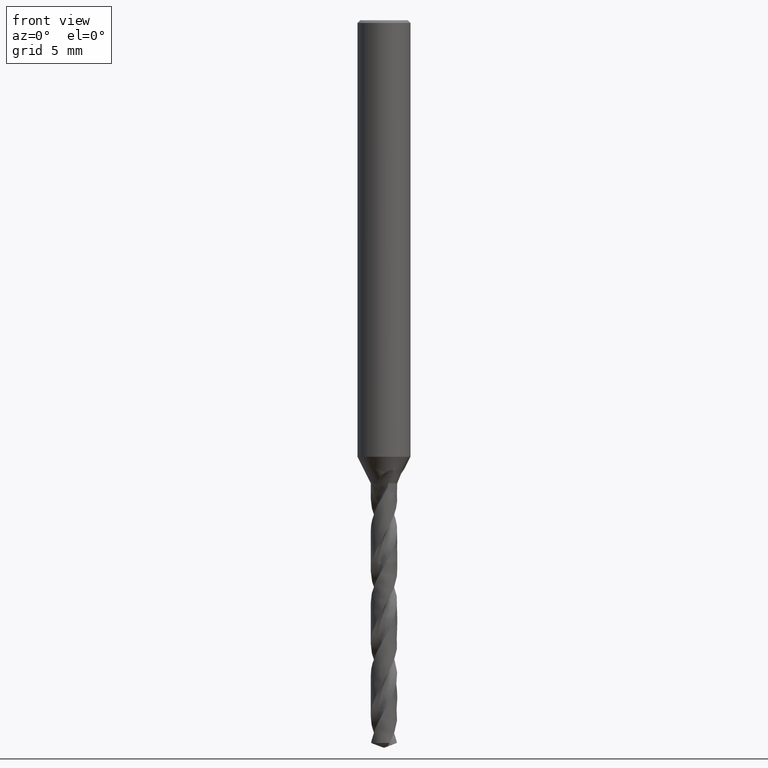
[diagram: clean part render]
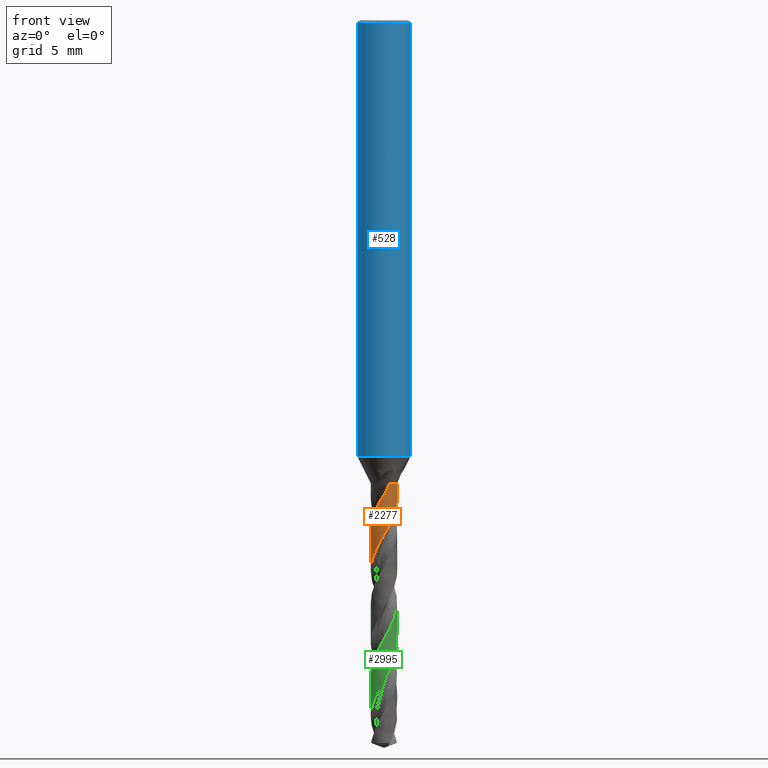
[diagram: same view with three faces highlighted in distinct colors, each labeled with its STEP entity id]
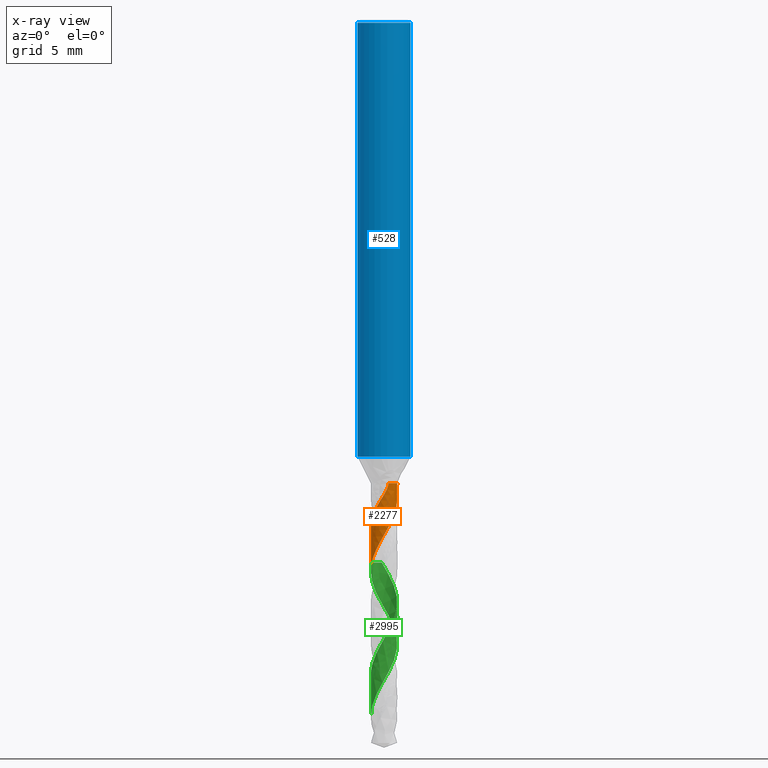
[diagram: x-ray of the same camera — body ghosted, the three highlighted faces saturated]
A machine part, front view with three faces highlighted in distinct colors.
The next image is the same camera in x-ray (body ghosted, the three faces saturated) — at least one of them is partly hidden behind the body in this view.
Their STEP definitions:

[orange] entity #2277 — the highlighted face is a freeform B-spline surface patch.
#317 = VERTEX_POINT('', #318);
#318 = CARTESIAN_POINT('', (0.331958743086903, -0.943293905889442, -35.));
#376 = EDGE_CURVE('', #377, #317, #379, .T.);
#377 = VERTEX_POINT('', #378);
#378 = CARTESIAN_POINT('', (0.591817481824011, 0.806071999394278, -35.));
#379 = CIRCLE('', #380, 1.);
#380 = AXIS2_PLACEMENT_3D('', #381, #382, #383);
#381 = CARTESIAN_POINT('', (1.31228980982913E-31, 2.14313189850787E-15, -35.));
#382 = DIRECTION('', (3.74939945665464E-33, 6.12323399573677E-17, -1.));
#383 = DIRECTION('', (-1., 6.12323399573677E-17, 0.));
#858 = VERTEX_POINT('', #859);
#859 = CARTESIAN_POINT('', (-1., 2.42267420681008E-15, -38.5652723462282));
#866 = EDGE_CURVE('', #867, #858, #869, .T.);
#867 = VERTEX_POINT('', #868);
#868 = CARTESIAN_POINT('', (-0.667705279136492, -0.744425725115176, -37.0936840028538));
#869 = B_SPLINE_CURVE_WITH_KNOTS('', 3, (#870, #871, #872, #873, #874, #875, #876, #877, #878, #879, #880, #881, #882, #883, #884, #885, #886, #887, #888, #889, #890, #891, #892, #893, #894, #895, #896, #897, #898, #899, #900), .UNSPECIFIED., .F., .U., (4, 3, 3, 3, 3, 3, 3, 3, 3, 3, 4), (0., 0.087580638137698, 0.284562982988752, 0.481490965644357, 0.67835255485315, 0.809625128761185, 0.897161192859609, 1.093937016555, 1.2906585650565, 1.48731391158484, 1.69419780096293), .UNSPECIFIED.);
#870 = CARTESIAN_POINT('', (-0.66770527913649, -0.744425725115178, -37.0936840028538));
#871 = CARTESIAN_POINT('', (-0.678097659484372, -0.735104382519177, -37.1193233112229));
#872 = CARTESIAN_POINT('', (-0.688332712692833, -0.725531068232871, -37.1449365169101));
#873 = CARTESIAN_POINT('', (-0.698384838463862, -0.715722444390147, -37.1705296565481));
#874 = CARTESIAN_POINT('', (-0.720993617609792, -0.693661338586556, -37.2280925695982));
#875 = CARTESIAN_POINT('', (-0.742696758048704, -0.670391631442098, -37.2855689448738));
#876 = CARTESIAN_POINT('', (-0.763361915090433, -0.645971041602844, -37.342909369697));
#877 = CARTESIAN_POINT('', (-0.784021369066199, -0.621557191234983, -37.4002339699985));
#878 = CARTESIAN_POINT('', (-0.803649294125848, -0.595983186919778, -37.4574581380113));
#879 = CARTESIAN_POINT('', (-0.822082645357237, -0.569368179829576, -37.5145616570627));
#880 = CARTESIAN_POINT('', (-0.840509781861252, -0.542762145877848, -37.5716459239012));
#881 = CARTESIAN_POINT('', (-0.857754203570938, -0.515098557653066, -37.6286417706444));
#882 = CARTESIAN_POINT('', (-0.873660283421887, -0.486536441771001, -37.6855386605681));
#883 = CARTESIAN_POINT('', (-0.884266882968364, -0.46749045883869, -37.7234790288119));
#884 = CARTESIAN_POINT('', (-0.894283741223398, -0.448035912976097, -37.7613859934346));
#885 = CARTESIAN_POINT('', (-0.903662127725927, -0.428246142906011, -37.7992691272735));
#886 = CARTESIAN_POINT('', (-0.909915886737312, -0.415049794805442, -37.8245306143705));
#887 = CARTESIAN_POINT('', (-0.915886410607096, -0.401703288192095, -37.8497858040511));
#888 = CARTESIAN_POINT('', (-0.921558545729247, -0.388239419422338, -37.8750434158983));
#889 = CARTESIAN_POINT('', (-0.934309165399761, -0.357973449680807, -37.9318210129607));
#890 = CARTESIAN_POINT('', (-0.945554326599717, -0.32711275382901, -37.9886425486653));
#891 = CARTESIAN_POINT('', (-0.955255512722856, -0.295781854434241, -38.0454454049797));
#892 = CARTESIAN_POINT('', (-0.964954023040868, -0.264459596805555, -38.1022325937899));
#893 = CARTESIAN_POINT('', (-0.973116816522373, -0.232636579206561, -38.1590287600673));
#894 = CARTESIAN_POINT('', (-0.979694012129913, -0.200498485272589, -38.2158073929722));
#895 = CARTESIAN_POINT('', (-0.986268994338207, -0.168371206652183, -38.2725669183743));
#896 = CARTESIAN_POINT('', (-0.991262949830315, -0.135914502940906, -38.3293459925402));
#897 = CARTESIAN_POINT('', (-0.994649942995187, -0.103302908474704, -38.386109082045));
#898 = CARTESIAN_POINT('', (-0.99821310225638, -0.0689951023504668, -38.4458245636589));
#899 = CARTESIAN_POINT('', (-1., -0.0344925181227468, -38.5055569662754));
#900 = CARTESIAN_POINT('', (-1., 2.81420090085561E-15, -38.5652723462282));
#903 = VERTEX_POINT('', #904);
#904 = CARTESIAN_POINT('', (-0.270919259129546, -0.962602075123829, -36.2945627804179));
#915 = EDGE_CURVE('', #903, #317, #916, .T.);
#916 = B_SPLINE_CURVE_WITH_KNOTS('', 3, (#917, #918, #919, #920, #921, #922, #923, #924, #925, #926, #927, #928, #929, #930, #931, #932, #933, #934, #935, #936, #937, #938, #939, #940, #941, #942, #943, #944, #945, #946, #947, #948, #949, #950, #951, #952, #953, #954, #955, #956, #957, #958, #959), .UNSPECIFIED., .F., .U., (4, 3, 3, 3, 3, 3, 3, 3, 3, 3, 3, 3, 3, 3, 4), (0., 0.131112997442626, 0.262057827260335, 0.392835903925117, 0.480081468572458, 0.506004415062296, 0.637024939736677, 0.767840597542089, 0.898481767069505, 1.02899985926785, 1.11617536079775, 1.20336218454592, 1.29059378630664, 1.37792635467049, 1.452150338563), .UNSPECIFIED.);
#917 = CARTESIAN_POINT('', (-0.270919259129546, -0.962602075123828, -36.2945627804179));
#918 = CARTESIAN_POINT('', (-0.247424707032954, -0.969214492458136, -36.2583088063409));
#919 = CARTESIAN_POINT('', (-0.223459358542497, -0.975025484034326, -36.2222024999147));
#920 = CARTESIAN_POINT('', (-0.199280792004015, -0.97994242991017, -36.1861291130346));
#921 = CARTESIAN_POINT('', (-0.175133237281203, -0.984853069232689, -36.1501019944568));
#922 = CARTESIAN_POINT('', (-0.150768015444397, -0.988873021553837, -36.1140878290414));
#923 = CARTESIAN_POINT('', (-0.126452597808502, -0.991972651088465, -36.0779723917243));
#924 = CARTESIAN_POINT('', (-0.102168144912194, -0.995068333365317, -36.0419029460133));
#925 = CARTESIAN_POINT('', (-0.0779196699334643, -0.997248068365322, -36.0057182679496));
#926 = CARTESIAN_POINT('', (-0.0539716147974466, -0.998542470201519, -35.9693158230562));
#927 = CARTESIAN_POINT('', (-0.037995224519869, -0.999406000404437, -35.9450307751318));
#928 = CARTESIAN_POINT('', (-0.0221488423684186, -0.999877015436903, -35.9206422602196));
#929 = CARTESIAN_POINT('', (-0.00650893016357039, -0.999978816689696, -35.8961241635126));
#930 = CARTESIAN_POINT('', (-0.00186190187243771, -1.00000906451306, -35.8888391936516));
#931 = CARTESIAN_POINT('', (0.00276712145247744, -1.00000679375802, -35.8815424967306));
#932 = CARTESIAN_POINT('', (0.0073761742243168, -0.999972795656866, -35.8742334578456));
#933 = CARTESIAN_POINT('', (0.0306713853861743, -0.999800961446107, -35.8372918968257));
#934 = CARTESIAN_POINT('', (0.0534645931661069, -0.998814185675477, -35.8000216861965));
#935 = CARTESIAN_POINT('', (0.0754976889087504, -0.99714597676039, -35.7623502767236));
#936 = CARTESIAN_POINT('', (0.0974963331686991, -0.995480376297209, -35.72473777118));
#937 = CARTESIAN_POINT('', (0.118751929840653, -0.99313478952755, -35.6867019048498));
#938 = CARTESIAN_POINT('', (0.139016155171699, -0.990290113351271, -35.6481962671244));
#939 = CARTESIAN_POINT('', (0.15925335109478, -0.98744923154224, -35.6097419900888));
#940 = CARTESIAN_POINT('', (0.178516209727836, -0.984108679482716, -35.5707879318641));
#941 = CARTESIAN_POINT('', (0.196540541612952, -0.980495698869955, -35.531311154364));
#942 = CARTESIAN_POINT('', (0.214547892735919, -0.976886122054064, -35.4918715680215));
#943 = CARTESIAN_POINT('', (0.231341420234763, -0.973000291722233, -35.4518706874477));
#944 = CARTESIAN_POINT('', (0.246615961784082, -0.969113289246056, -35.4113200487064));
#945 = CARTESIAN_POINT('', (0.256818116885902, -0.966517086799319, -35.3842355103861));
#946 = CARTESIAN_POINT('', (0.266349623251003, -0.96391944635867, -35.3568860436432));
#947 = CARTESIAN_POINT('', (0.275099082181929, -0.961415880346614, -35.3292893848323));
#948 = CARTESIAN_POINT('', (0.283849677478944, -0.958911989175307, -35.3016891418103));
#949 = CARTESIAN_POINT('', (0.291826537447043, -0.956499855407902, -35.2738184405929));
#950 = CARTESIAN_POINT('', (0.298884495758693, -0.954289294813196, -35.2457130238508));
#951 = CARTESIAN_POINT('', (0.305946078945436, -0.952077598903477, -35.2175931725341));
#952 = CARTESIAN_POINT('', (0.312097370687558, -0.950065001686242, -35.1892049892437));
#953 = CARTESIAN_POINT('', (0.317140410689729, -0.948378595239025, -35.160618150055));
#954 = CARTESIAN_POINT('', (0.322189287780848, -0.94669023685321, -35.1319982229029));
#955 = CARTESIAN_POINT('', (0.326138830164317, -0.945325765579732, -35.1031280361719));
#956 = CARTESIAN_POINT('', (0.328697467213187, -0.944435267791092, -35.0741435172996));
#957 = CARTESIAN_POINT('', (0.330872053838315, -0.943678433373433, -35.0495095634127));
#958 = CARTESIAN_POINT('', (0.332046366576497, -0.943263069918501, -35.0247411535846));
#959 = CARTESIAN_POINT('', (0.331958743086903, -0.943293905889442, -35.));
#1272 = EDGE_CURVE('', #903, #867, #1273, .T.);
#1273 = B_SPLINE_CURVE_WITH_KNOTS('', 3, (#1274, #1275, #1276, #1277, #1278, #1279, #1280, #1281, #1282, #1283, #1284, #1285, #1286, #1287, #1288, #1289, #1290, #1291, #1292, #1293, #1294, #1295, #1296, #1297, #1298, #1299, #1300, #1301), .UNSPECIFIED., .F., .U., (4, 3, 3, 3, 3, 3, 3, 3, 3, 4), (0., 0.131545010559273, 0.263122094423806, 0.350791481876697, 0.438432320446734, 0.526042093561426, 0.584444479798226, 0.672039810538465, 0.759615687661557, 0.920942907310289), .UNSPECIFIED.);
#1274 = CARTESIAN_POINT('', (-0.270919259129546, -0.962602075123829, -36.2945627804179));
#1275 = CARTESIAN_POINT('', (-0.294491225020907, -0.955967870086724, -36.3309362101754));
#1276 = CARTESIAN_POINT('', (-0.317396924715115, -0.948585963660327, -36.3676186721934));
#1277 = CARTESIAN_POINT('', (-0.339578180540052, -0.940577832665167, -36.4045853919934));
#1278 = CARTESIAN_POINT('', (-0.361764844598916, -0.932567749127461, -36.4415611250193));
#1279 = CARTESIAN_POINT('', (-0.383242937304829, -0.923924352358713, -36.4788376845253));
#1280 = CARTESIAN_POINT('', (-0.403929292725018, -0.914790208998032, -36.5164176852922));
#1281 = CARTESIAN_POINT('', (-0.417712544755349, -0.908704158678188, -36.541457118839));
#1282 = CARTESIAN_POINT('', (-0.431146855764007, -0.902399297150551, -36.5666394036593));
#1283 = CARTESIAN_POINT('', (-0.444194956034298, -0.895930154104812, -36.5919749230927));
#1284 = CARTESIAN_POINT('', (-0.457238807287949, -0.889463117687308, -36.6173021922031));
#1285 = CARTESIAN_POINT('', (-0.469899956339367, -0.8828319405219, -36.6427874741962));
#1286 = CARTESIAN_POINT('', (-0.482233325493585, -0.876042818464827, -36.6683849546022));
#1287 = CARTESIAN_POINT('', (-0.494562322921848, -0.869256102901935, -36.6939733616426));
#1288 = CARTESIAN_POINT('', (-0.506566359325747, -0.862310995033445, -36.7196779946283));
#1289 = CARTESIAN_POINT('', (-0.518345657534417, -0.85517119883405, -36.7454287558699));
#1290 = CARTESIAN_POINT('', (-0.526197967831815, -0.850411671209852, -36.762594716361));
#1291 = CARTESIAN_POINT('', (-0.533956915282278, -0.845561084351134, -36.7797785906115));
#1292 = CARTESIAN_POINT('', (-0.541639873351949, -0.840610639710967, -36.7969671720817));
#1293 = CARTESIAN_POINT('', (-0.55316322533362, -0.833185671939814, -36.8227476166124));
#1294 = CARTESIAN_POINT('', (-0.564505502916703, -0.825542573709265, -36.8485476894459));
#1295 = CARTESIAN_POINT('', (-0.575687087733734, -0.817670090572383, -36.8743458536778));
#1296 = CARTESIAN_POINT('', (-0.586866189287463, -0.809799355796648, -36.9001382885221));
#1297 = CARTESIAN_POINT('', (-0.597886200621691, -0.801698747406031, -36.9259311590473));
#1298 = CARTESIAN_POINT('', (-0.608786692478001, -0.793333954310348, -36.9516873230942));
#1299 = CARTESIAN_POINT('', (-0.628866948614178, -0.777924815887826, -36.9991338400005));
#1300 = CARTESIAN_POINT('', (-0.648562077366028, -0.76159603029201, -37.0464553182854));
#1301 = CARTESIAN_POINT('', (-0.667705279136492, -0.744425725115176, -37.0936840028538));
#1637 = EDGE_CURVE('', #1638, #377, #1640, .T.);
#1638 = VERTEX_POINT('', #1639);
#1639 = CARTESIAN_POINT('', (0.814095519912486, 0.580730991474041, -35.3306141428726));
#1640 = B_SPLINE_CURVE_WITH_KNOTS('', 3, (#1641, #1642, #1643, #1644, #1645, #1646, #1647, #1648, #1649, #1650, #1651, #1652, #1653), .UNSPECIFIED., .F., .U., (4, 3, 3, 3, 4), (0., 0.132920508495596, 0.265944197265653, 0.399045964347828, 0.459074811286351), .UNSPECIFIED.);
#1641 = CARTESIAN_POINT('', (0.814095519912486, 0.580730991474041, -35.3306141428726));
#1642 = CARTESIAN_POINT('', (0.797870761742265, 0.603475606677913, -35.2962261299536));
#1643 = CARTESIAN_POINT('', (0.780210864995625, 0.626213312950663, -35.2624697975323));
#1644 = CARTESIAN_POINT('', (0.761054150340617, 0.648688353717965, -35.2294396816212));
#1645 = CARTESIAN_POINT('', (0.741882565180686, 0.671180840859052, -35.1963839259012));
#1646 = CARTESIAN_POINT('', (0.721184669493866, 0.693441699792829, -35.1640058630792));
#1647 = CARTESIAN_POINT('', (0.698924759913472, 0.71519520410857, -35.1324238093617));
#1648 = CARTESIAN_POINT('', (0.676651784869445, 0.736961476653152, -35.1008232185441));
#1649 = CARTESIAN_POINT('', (0.652775508219572, 0.758257723256828, -35.0699666952295));
#1650 = CARTESIAN_POINT('', (0.627293240355083, 0.778783147355426, -35.0400031445741));
#1651 = CARTESIAN_POINT('', (0.615800747123649, 0.788040105911073, -35.0264895944879));
#1652 = CARTESIAN_POINT('', (0.603974925804552, 0.797146012773496, -35.0131494500651));
#1653 = CARTESIAN_POINT('', (0.591817481824011, 0.806071999394278, -35.));
#1897 = VERTEX_POINT('', #1898);
#1898 = CARTESIAN_POINT('', (-0.931375569243423, -0.364059815162961, -41.));
#1905 = EDGE_CURVE('', #1638, #1897, #1906, .T.);
#1906 = B_SPLINE_CURVE_WITH_KNOTS('', 3, (#1907, #1908, #1909, #1910, #1911, #1912, #1913, #1914, #1915, #1916, #1917, #1918, #1919, #1920, #1921, #1922, #1923, #1924, #1925, #1926, #1927, #1928, #1929, #1930, #1931, #1932, #1933, #1934, #1935, #1936, #1937, #1938, #1939, #1940, #1941, #1942, #1943, #1944, #1945, #1946, #1947, #1948, #1949, #1950, #1951, #1952, #1953, #1954, #1955, #1956, #1957, #1958, #1959, #1960, #1961, #1962, #1963, #1964, #1965, #1966, #1967, #1968, #1969, #1970, #1971, #1972, #1973, #1974, #1975, #1976, #1977, #1978, #1979, #1980, #1981, #1982, #1983, #1984, #1985, #1986, #1987, #1988, #1989, #1990, #1991, #1992, #1993, #1994, #1995, #1996, #1997, #1998, #1999, #2000, #2001, #2002, #2003, #2004, #2005, #2006, #2007, #2008, #2009, #2010, #2011, #2012, #2013, #2014, #2015, #2016, #2017, #2018, #2019, #2020, #2021, #2022, #2023, #2024, #2025, #2026, #2027, #2028, #2029, #2030), .UNSPECIFIED., .F., .U., (4, 3, 3, 3, 3, 3, 3, 3, 3, 3, 3, 3, 3, 3, 3, 3, 3, 3, 3, 3, 3, 3, 3, 3, 3, 3, 3, 3, 3, 3, 3, 3, 3, 3, 3, 3, 3, 3, 3, 3, 3, 4), (0., 0.130713721621778, 0.261446195597419, 0.392208586974836, 0.523005884833641, 0.65384900582493, 0.784740314683078, 0.915683874806735, 1.04668553806505, 1.07263467825158, 1.20426791351592, 1.33589112887555, 1.46753823703605, 1.52596971363927, 1.61363903296967, 1.70127484601613, 1.7596883178821, 1.8473146074909, 1.93491756876288, 2.02252142282714, 2.15393623335191, 2.35101896870534, 2.54806132199728, 2.74504767579916, 2.83261028190415, 2.96393846930068, 3.05149411321987, 3.24837750267737, 3.44520854752848, 3.74011203216584, 4.03481673744868, 4.16598088737569, 4.20488566519468, 4.50146691930273, 4.79781584453753, 5.09394196108365, 5.38985605371845, 5.6855663951253, 5.98107814618691, 6.27639454786366, 6.5715166444144, 6.61001892849816), .UNSPECIFIED.);
#1907 = CARTESIAN_POINT('', (0.814095519912486, 0.580730991474041, -35.3306141428726));
#1908 = CARTESIAN_POINT('', (0.830050909692786, 0.55836398931762, -35.3644312354996));
#1909 = CARTESIAN_POINT('', (0.844963571798965, 0.535507091226506, -35.3984351686919));
#1910 = CARTESIAN_POINT('', (0.85881684222291, 0.512282765193481, -35.432599047001));
#1911 = CARTESIAN_POINT('', (0.872672100054343, 0.48905510736962, -35.4667678265027));
#1912 = CARTESIAN_POINT('', (0.885475885902655, 0.465446305533014, -35.501121488219));
#1913 = CARTESIAN_POINT('', (0.897223863778772, 0.441575971114708, -35.5356351072813));
#1914 = CARTESIAN_POINT('', (0.908974530114484, 0.417700174102727, -35.570156624594));
#1915 = CARTESIAN_POINT('', (0.919677283511454, 0.393545806288983, -35.6048585689723));
#1916 = CARTESIAN_POINT('', (0.929338179414571, 0.36922966874618, -35.6397191419052));
#1917 = CARTESIAN_POINT('', (0.939001654254027, 0.344907040110688, -35.6745890207244));
#1918 = CARTESIAN_POINT('', (0.947627694184705, 0.320410639918444, -35.7096404285529));
#1919 = CARTESIAN_POINT('', (0.955235202489859, 0.295847440286646, -35.7448491845634));
#1920 = CARTESIAN_POINT('', (0.962845375986624, 0.271275635257264, -35.7800702755038));
#1921 = CARTESIAN_POINT('', (0.969440759481059, 0.246622217911988, -35.8154678766544));
#1922 = CARTESIAN_POINT('', (0.975047653210877, 0.221995662047626, -35.8510250008217));
#1923 = CARTESIAN_POINT('', (0.980656611888752, 0.197360036534158, -35.8865952202281));
#1924 = CARTESIAN_POINT('', (0.985279582111323, 0.172738302947204, -35.9223436618752));
#1925 = CARTESIAN_POINT('', (0.988953590159977, 0.14822549210475, -35.9582496326875));
#1926 = CARTESIAN_POINT('', (0.992629064857347, 0.12370289585027, -35.9941699370138));
#1927 = CARTESIAN_POINT('', (0.995356394160782, 0.0992783758147931, -36.0302664017968));
#1928 = CARTESIAN_POINT('', (0.99718009372992, 0.0750457238542172, -36.0665236466321));
#1929 = CARTESIAN_POINT('', (0.999004602522983, 0.0508023192225009, -36.1027969797697));
#1930 = CARTESIAN_POINT('', (0.999925967739419, 0.0267366966556748, -36.1392457776329));
#1931 = CARTESIAN_POINT('', (0.99999570927832, 0.00292940693730242, -36.1758522564278));
#1932 = CARTESIAN_POINT('', (1.00000952385842, -0.00178640111427339, -36.1831033601647));
#1933 = CARTESIAN_POINT('', (0.999989949423278, -0.00649230241821115, -36.1903610559425));
#1934 = CARTESIAN_POINT('', (0.999937416416876, -0.0111876382468717, -36.1976252560749));
#1935 = CARTESIAN_POINT('', (0.999670930146379, -0.035005855009985, -36.2344746529398));
#1936 = CARTESIAN_POINT('', (0.998555624582649, -0.0585561978037882, -36.2715014145491));
#1937 = CARTESIAN_POINT('', (0.996651829712581, -0.0817626463035851, -36.3086913705471));
#1938 = CARTESIAN_POINT('', (0.99474817975913, -0.104967328331544, -36.3458784956506));
#1939 = CARTESIAN_POINT('', (0.992055623419409, -0.127837220572577, -36.3832436259161));
#1940 = CARTESIAN_POINT('', (0.988638864537124, -0.150310330738594, -36.4207702631599));
#1941 = CARTESIAN_POINT('', (0.985221485430365, -0.172787520318299, -36.4583037123971));
#1942 = CARTESIAN_POINT('', (0.98107692383878, -0.194883505155679, -36.4960080121564));
#1943 = CARTESIAN_POINT('', (0.976276496282678, -0.216527602873208, -36.533878201914));
#1944 = CARTESIAN_POINT('', (0.974145829879525, -0.226134320461244, -36.550686859071));
#1945 = CARTESIAN_POINT('', (0.971885977476122, -0.235652367948525, -36.5675305850602));
#1946 = CARTESIAN_POINT('', (0.969504974007409, -0.245071633150188, -36.584411579791));
#1947 = CARTESIAN_POINT('', (0.965932568078959, -0.259204094228142, -36.6097394579091));
#1948 = CARTESIAN_POINT('', (0.962088651017657, -0.273111203221229, -36.6351570723808));
#1949 = CARTESIAN_POINT('', (0.957989240097525, -0.286804141981099, -36.6606460544796));
#1950 = CARTESIAN_POINT('', (0.953891395928764, -0.300491847445016, -36.6861252949598));
#1951 = CARTESIAN_POINT('', (0.949538374342861, -0.313967599035488, -36.7116791443562));
#1952 = CARTESIAN_POINT('', (0.94492396229779, -0.327289940993411, -36.7372635089052));
#1953 = CARTESIAN_POINT('', (0.941848235391145, -0.336169920765326, -36.7543167147448));
#1954 = CARTESIAN_POINT('', (0.938654513321911, -0.344986388402855, -36.7713822149433));
#1955 = CARTESIAN_POINT('', (0.935337808366689, -0.353755825732662, -36.7884474545642));
#1956 = CARTESIAN_POINT('', (0.930362405609939, -0.366910894771035, -36.8140470907696));
#1957 = CARTESIAN_POINT('', (0.9251143084709, -0.379948353289841, -36.8396558744503));
#1958 = CARTESIAN_POINT('', (0.91959692407393, -0.392863204224785, -36.8652667499252));
#1959 = CARTESIAN_POINT('', (0.914081008544375, -0.405774616899431, -36.8908708071366));
#1960 = CARTESIAN_POINT('', (0.908295681110676, -0.418565107629265, -36.9164795321603));
#1961 = CARTESIAN_POINT('', (0.902230562374954, -0.431253999768781, -36.9420706243226));
#1962 = CARTESIAN_POINT('', (0.896165381827496, -0.443943021225214, -36.9676619772927));
#1963 = CARTESIAN_POINT('', (0.889815541850548, -0.45653941466438, -36.9932335859214));
#1964 = CARTESIAN_POINT('', (0.883183558230455, -0.469027507158579, -37.0187831332081));
#1965 = CARTESIAN_POINT('', (0.873234899234258, -0.487760933061704, -37.0571100875588));
#1966 = CARTESIAN_POINT('', (0.862649059446422, -0.506252702841673, -37.0953958603087));
#1967 = CARTESIAN_POINT('', (0.851460376389651, -0.524418942676932, -37.1336538476238));
#1968 = CARTESIAN_POINT('', (0.834680713176462, -0.551662844817964, -37.1910293349));
#1969 = CARTESIAN_POINT('', (0.816547239039191, -0.57817526768268, -37.2483773802011));
#1970 = CARTESIAN_POINT('', (0.797111401000462, -0.603832273396414, -37.3056460461462));
#1971 = CARTESIAN_POINT('', (0.777679545346114, -0.629484022014541, -37.3629029777972));
#1972 = CARTESIAN_POINT('', (0.756927335099102, -0.654302751048698, -37.4201068340859));
#1973 = CARTESIAN_POINT('', (0.734942111770184, -0.678129849178457, -37.4772285006698));
#1974 = CARTESIAN_POINT('', (0.712963136647679, -0.701950175640488, -37.5343339332606));
#1975 = CARTESIAN_POINT('', (0.689736350585264, -0.724795251833668, -37.5913882902282));
#1976 = CARTESIAN_POINT('', (0.665381682127064, -0.746503326911393, -37.6483718258529));
#1977 = CARTESIAN_POINT('', (0.654555763479076, -0.756152805622188, -37.6737016357005));
#1978 = CARTESIAN_POINT('', (0.643505793869154, -0.765579245096773, -37.6990226425023));
#1979 = CARTESIAN_POINT('', (0.632243960324681, -0.774769368672355, -37.7243332125228));
#1980 = CARTESIAN_POINT('', (0.615353232056684, -0.788552903960058, -37.7622945230709));
#1981 = CARTESIAN_POINT('', (0.597978782255906, -0.801809666661006, -37.8002386162913));
#1982 = CARTESIAN_POINT('', (0.580183325904855, -0.814485916601372, -37.8381724806567));
#1983 = CARTESIAN_POINT('', (0.568319211501542, -0.822937089559834, -37.8634627400191));
#1984 = CARTESIAN_POINT('', (0.556269184573682, -0.831129689535959, -37.8887541900519));
#1985 = CARTESIAN_POINT('', (0.544053387701165, -0.839050601174257, -37.9140486601819));
#1986 = CARTESIAN_POINT('', (0.516584142024606, -0.856862084947717, -37.9709274722241));
#1987 = CARTESIAN_POINT('', (0.488256873786078, -0.873313137333625, -38.0278405522387));
#1988 = CARTESIAN_POINT('', (0.45919029059203, -0.888337929521195, -38.0847298924769));
#1989 = CARTESIAN_POINT('', (0.430131435215248, -0.903358727126818, -38.1416041077716));
#1990 = CARTESIAN_POINT('', (0.400317862660647, -0.91696014351212, -38.1984902016716));
#1991 = CARTESIAN_POINT('', (0.36992323764798, -0.92906232204736, -38.2553621793667));
#1992 = CARTESIAN_POINT('', (0.324384278906682, -0.947194495376244, -38.3405710162815));
#1993 = CARTESIAN_POINT('', (0.277488599977831, -0.961977996360577, -38.4258432213671));
#1994 = CARTESIAN_POINT('', (0.229794030035815, -0.9732392839174, -38.511057831393));
#1995 = CARTESIAN_POINT('', (0.182131608563792, -0.984492980816303, -38.596215002609));
#1996 = CARTESIAN_POINT('', (0.133611800222409, -0.992242675861527, -38.6814310194929));
#1997 = CARTESIAN_POINT('', (0.0848225570055262, -0.996396072765765, -38.7665923661501));
#1998 = CARTESIAN_POINT('', (0.0631079406542786, -0.998244624093546, -38.8044951055386));
#1999 = CARTESIAN_POINT('', (0.0413306321520169, -0.999383141892895, -38.8424032460421));
#2000 = CARTESIAN_POINT('', (0.0195429273005008, -0.999809018759346, -38.8803067274739));
#2001 = CARTESIAN_POINT('', (0.0130804463794134, -0.999935338678902, -38.8915493309177));
#2002 = CARTESIAN_POINT('', (0.00661672521620921, -0.999998998490383, -38.9027921001268));
#2003 = CARTESIAN_POINT('', (0.000153132300518041, -0.999999988275247, -38.9140347739286));
#2004 = CARTESIAN_POINT('', (-0.0491205199459684, -1.00000753366306, -38.9997406044865));
#2005 = CARTESIAN_POINT('', (-0.0984240407162236, -0.996363336415421, -39.0855066246807));
#2006 = CARTESIAN_POINT('', (-0.147154223209454, -0.989113560007959, -39.171216555905));
#2007 = CARTESIAN_POINT('', (-0.195846232594182, -0.98186946276046, -39.2568593456917));
#2008 = CARTESIAN_POINT('', (-0.244030841034352, -0.971015782042539, -39.3425621127429));
#2009 = CARTESIAN_POINT('', (-0.291119848672315, -0.956686591161915, -39.4282089212864));
#2010 = CARTESIAN_POINT('', (-0.338173452638628, -0.942368173622976, -39.5137913366384));
#2011 = CARTESIAN_POINT('', (-0.384195700222978, -0.924560448570864, -39.5994336075712));
#2012 = CARTESIAN_POINT('', (-0.428626066573174, -0.903481983801741, -39.6850201100905));
#2013 = CARTESIAN_POINT('', (-0.473024621139374, -0.882418611043405, -39.7705453333642));
#2014 = CARTESIAN_POINT('', (-0.515892632126505, -0.858061189021852, -39.8561302188892));
#2015 = CARTESIAN_POINT('', (-0.556709138362455, -0.830707490795509, -39.941659448674));
#2016 = CARTESIAN_POINT('', (-0.597497540451042, -0.803372626919205, -40.0271297874291));
#2017 = CARTESIAN_POINT('', (-0.636291312627683, -0.773009419867763, -40.1126596701807));
#2018 = CARTESIAN_POINT('', (-0.672620107719985, -0.739987966585102, -40.1981340499985));
#2019 = CARTESIAN_POINT('', (-0.708924505464784, -0.706988689536713, -40.2835510277434));
#2020 = CARTESIAN_POINT('', (-0.742815282586462, -0.671291088421066, -40.3690273843225));
#2021 = CARTESIAN_POINT('', (-0.773882451612883, -0.633329259615905, -40.4544484135299));
#2022 = CARTESIAN_POINT('', (-0.804929083546153, -0.595392525650047, -40.539812974778));
#2023 = CARTESIAN_POINT('', (-0.833196925762442, -0.555144389658725, -40.6252367399754));
#2024 = CARTESIAN_POINT('', (-0.858344892866909, -0.513073137953345, -40.7106052762515));
#2025 = CARTESIAN_POINT('', (-0.883476313721695, -0.471029567270141, -40.7959176438079));
#2026 = CARTESIAN_POINT('', (-0.905525084495618, -0.42710991592075, -40.8812891172304));
#2027 = CARTESIAN_POINT('', (-0.924226018267434, -0.381845868325874, -40.9666055358111));
#2028 = CARTESIAN_POINT('', (-0.926665783615842, -0.375940620160292, -40.9777361052385));
#2029 = CARTESIAN_POINT('', (-0.929049490069723, -0.370010632100941, -40.9888693612008));
#2030 = CARTESIAN_POINT('', (-0.931375569243423, -0.364059815162961, -41.));
#2207 = VERTEX_POINT('', #2208);
#2208 = CARTESIAN_POINT('', (-1., 2.57175827820944E-15, -41.));
#2215 = EDGE_CURVE('', #858, #2207, #2216, .T.);
#2216 = LINE('', #2217, #2218);
#2217 = CARTESIAN_POINT('', (-1., 2.42267420681008E-15, -38.5652723462282));
#2218 = VECTOR('', #2219, 2.43472765377183);
#2219 = DIRECTION('', (0., 1.49084071399361E-16, -2.43472765377183));
#2277 = ADVANCED_FACE('', (#2278), #2294, .T.);
#2278 = FACE_OUTER_BOUND('', #2279, .T.);
#2279 = EDGE_LOOP('', (#2280, #2287, #2288, #2289, #2290, #2291, #2292, #2293));
#2280 = ORIENTED_EDGE('', *, *, #2281, .F.);
#2281 = EDGE_CURVE('', #1897, #2207, #2282, .T.);
#2282 = CIRCLE('', #2283, 1.);
#2283 = AXIS2_PLACEMENT_3D('', #2284, #2285, #2286);
#2284 = CARTESIAN_POINT('', (1.5372537772284E-31, 2.51052593825207E-15, -41.));
#2285 = DIRECTION('', (3.74939945665464E-33, 6.12323399573677E-17, -1.));
#2286 = DIRECTION('', (-1., 6.12323399573677E-17, 0.));
#2287 = ORIENTED_EDGE('', *, *, #1905, .F.);
#2288 = ORIENTED_EDGE('', *, *, #1637, .T.);
#2289 = ORIENTED_EDGE('', *, *, #376, .T.);
#2290 = ORIENTED_EDGE('', *, *, #915, .F.);
#2291 = ORIENTED_EDGE('', *, *, #1272, .T.);
#2292 = ORIENTED_EDGE('', *, *, #866, .T.);
#2293 = ORIENTED_EDGE('', *, *, #2215, .T.);
#2294 = (
   BOUNDED_SURFACE ()
   B_SPLINE_SURFACE (2, 1, ((#2295, #2296), (#2297, #2298), (#2299, #2300), (#2301, #2302), (#2303, #2304), (#2305, #2306), (#2307, #2308), (#2309, #2310), (#2311, #2312)), .UNSPECIFIED., .T., .F., .U.)
   B_SPLINE_SURFACE_WITH_KNOTS ((3, 2, 2, 2, 3), (2, 2), (0., 1.5707963267949, 3.14159265358979, 4.71238898038469, 6.28318530717959), (0., 0.305560750904463), .UNSPECIFIED.)
   GEOMETRIC_REPRESENTATION_ITEM ()
   RATIONAL_B_SPLINE_SURFACE (((1., 1.), (0.707106781186548, 0.707106781186548), (1., 1.), (0.707106781186548, 0.707106781186548), (1., 1.), (0.707106781186548, 0.707106781186548), (1., 1.), (0.707106781186548, 0.707106781186548), (1., 1.)))
   REPRESENTATION_ITEM ('')
   SURFACE ()
);
#2295 = CARTESIAN_POINT('', (-1., 2.20436423846524E-15, -35.));
#2296 = CARTESIAN_POINT('', (-1., 2.57175827820944E-15, -41.));
#2297 = CARTESIAN_POINT('', (-1., 1., -35.));
#2298 = CARTESIAN_POINT('', (-1., 1., -41.));
#2299 = CARTESIAN_POINT('', (1.35585468084861E-31, 1., -35.));
#2300 = CARTESIAN_POINT('', (1.35585468084861E-31, 1., -41.));
#2301 = CARTESIAN_POINT('', (1., 1., -35.));
#2302 = CARTESIAN_POINT('', (1., 1., -41.));
#2303 = CARTESIAN_POINT('', (1., 2.20436423846524E-15, -35.));
#2304 = CARTESIAN_POINT('', (1., 2.57175827820944E-15, -41.));
#2305 = CARTESIAN_POINT('', (1., -0.999999999999998, -35.));
#2306 = CARTESIAN_POINT('', (1., -0.999999999999997, -41.));
#2307 = CARTESIAN_POINT('', (1.22464679914735E-16, -0.999999999999998, -35.));
#2308 = CARTESIAN_POINT('', (1.22464679914735E-16, -0.999999999999997, -41.));
#2309 = CARTESIAN_POINT('', (-1., -0.999999999999998, -35.));
#2310 = CARTESIAN_POINT('', (-1., -0.999999999999997, -41.));
#2311 = CARTESIAN_POINT('', (-1., 2.20436423846524E-15, -35.));
#2312 = CARTESIAN_POINT('', (-1., 2.57175827820944E-15, -41.));

[blue] entity #528 — the highlighted face is a freeform B-spline surface patch.
#229 = VERTEX_POINT('', #230);
#230 = CARTESIAN_POINT('', (-2., 2.14313189850787E-15, -33.));
#236 = EDGE_CURVE('', #229, #229, #237, .T.);
#237 = CIRCLE('', #238, 2.);
#238 = AXIS2_PLACEMENT_3D('', #239, #240, #241);
#239 = CARTESIAN_POINT('', (1.23730182069603E-31, 2.02066721859313E-15, -33.));
#240 = DIRECTION('', (3.74939945665464E-33, 6.12323399573677E-17, -1.));
#241 = DIRECTION('', (-1., 6.12323399573677E-17, 0.));
#477 = VERTEX_POINT('', #478);
#478 = CARTESIAN_POINT('', (-2., 1.34711147906209E-16, -0.200000000000003));
#494 = EDGE_CURVE('', #477, #477, #495, .T.);
#495 = CIRCLE('', #496, 2.);
#496 = AXIS2_PLACEMENT_3D('', #497, #498, #499);
#497 = CARTESIAN_POINT('', (7.49879891330923E-34, 1.22464679914738E-17, -0.200000000000003));
#498 = DIRECTION('', (3.74939945665464E-33, 6.12323399573677E-17, -1.));
#499 = DIRECTION('', (-1., 6.12323399573677E-17, 0.));
#528 = ADVANCED_FACE('', (#529), #540, .T.);
#529 = FACE_OUTER_BOUND('', #530, .T.);
#530 = EDGE_LOOP('', (#531, #537, #538, #539));
#531 = ORIENTED_EDGE('', *, *, #532, .T.);
#532 = EDGE_CURVE('', #229, #477, #533, .T.);
#533 = LINE('', #534, #535);
#534 = CARTESIAN_POINT('', (-2., 2.14313189850787E-15, -33.));
#535 = VECTOR('', #536, 32.8);
#536 = DIRECTION('', (0., -2.00842075060166E-15, 32.8));
#537 = ORIENTED_EDGE('', *, *, #494, .T.);
#538 = ORIENTED_EDGE('', *, *, #532, .F.);
#539 = ORIENTED_EDGE('', *, *, #236, .F.);
#540 = (
   BOUNDED_SURFACE ()
   B_SPLINE_SURFACE (1, 2, ((#541, #542, #543, #544, #545, #546, #547, #548, #549), (#550, #551, #552, #553, #554, #555, #556, #557, #558)), .UNSPECIFIED., .F., .T., .U.)
   B_SPLINE_SURFACE_WITH_KNOTS ((2, 2), (3, 2, 2, 2, 3), (0., 1.), (0., 3.14159265358979, 6.28318530717959, 9.42477796076938, 12.5663706143592), .UNSPECIFIED.)
   GEOMETRIC_REPRESENTATION_ITEM ()
   RATIONAL_B_SPLINE_SURFACE (((1., 0.707106781186548, 1., 0.707106781186548, 1., 0.707106781186548, 1., 0.707106781186548, 1.), (1., 0.707106781186548, 1., 0.707106781186548, 1., 0.707106781186548, 1., 0.707106781186548, 1.)))
   REPRESENTATION_ITEM ('')
   SURFACE ()
);
#541 = CARTESIAN_POINT('', (-2., 2.14313189850787E-15, -33.));
#542 = CARTESIAN_POINT('', (-2., 2., -33.));
#543 = CARTESIAN_POINT('', (1.23259516440783E-31, 2., -33.));
#544 = CARTESIAN_POINT('', (2., 2., -33.));
#545 = CARTESIAN_POINT('', (2., 2.14313189850787E-15, -33.));
#546 = CARTESIAN_POINT('', (2., -2., -33.));
#547 = CARTESIAN_POINT('', (2.44929359829471E-16, -2., -33.));
#548 = CARTESIAN_POINT('', (-2., -2., -33.));
#549 = CARTESIAN_POINT('', (-2., 2.14313189850787E-15, -33.));
#550 = CARTESIAN_POINT('', (-2., 1.34711147906209E-16, -0.200000000000003));
#551 = CARTESIAN_POINT('', (-2., 2., -0.200000000000003));
#552 = CARTESIAN_POINT('', (0., 2., -0.200000000000003));
#553 = CARTESIAN_POINT('', (2., 2., -0.200000000000003));
#554 = CARTESIAN_POINT('', (2., 1.34711147906209E-16, -0.200000000000003));
#555 = CARTESIAN_POINT('', (2., -2., -0.200000000000003));
#556 = CARTESIAN_POINT('', (2.44929359829471E-16, -2., -0.200000000000003));
#557 = CARTESIAN_POINT('', (-2., -2., -0.200000000000003));
#558 = CARTESIAN_POINT('', (-2., 1.34711147906209E-16, -0.200000000000003));

[green] entity #2995 — the highlighted face is a freeform B-spline surface patch.
#2348 = VERTEX_POINT('', #2349);
#2349 = CARTESIAN_POINT('', (-1., 2.57175827820944E-15, -41.));
#2492 = VERTEX_POINT('', #2493);
#2493 = CARTESIAN_POINT('', (-0.165650388627012, 0.986184540919054, -41.));
#2499 = EDGE_CURVE('', #2348, #2492, #2500, .T.);
#2500 = CIRCLE('', #2501, 1.);
#2501 = AXIS2_PLACEMENT_3D('', #2502, #2503, #2504);
#2502 = CARTESIAN_POINT('', (1.5372537772284E-31, 2.51052593825207E-15, -41.));
#2503 = DIRECTION('', (3.74939945665464E-33, 6.12323399573677E-17, -1.));
#2504 = DIRECTION('', (-1., 6.12323399573677E-17, 0.));
#2516 = VERTEX_POINT('', #2517);
#2517 = CARTESIAN_POINT('', (-1., 2.6115161302151E-15, -41.6492949972733));
#2530 = EDGE_CURVE('', #2531, #2516, #2533, .T.);
#2531 = VERTEX_POINT('', #2532);
#2532 = CARTESIAN_POINT('', (-1., 3.28481160107422E-15, -52.645044487296));
#2533 = B_SPLINE_CURVE_WITH_KNOTS('', 3, (#2534, #2535, #2536, #2537, #2538, #2539, #2540, #2541, #2542, #2543, #2544, #2545, #2546, #2547, #2548, #2549, #2550, #2551, #2552, #2553, #2554, #2555, #2556, #2557, #2558, #2559, #2560, #2561, #2562, #2563, #2564, #2565, #2566, #2567, #2568, #2569, #2570, #2571, #2572, #2573, #2574, #2575, #2576, #2577, #2578, #2579, #2580, #2581, #2582, #2583, #2584, #2585, #2586, #2587, #2588, #2589, #2590, #2591, #2592, #2593, #2594, #2595, #2596, #2597, #2598, #2599, #2600, #2601, #2602, #2603, #2604, #2605, #2606, #2607, #2608, #2609, #2610, #2611, #2612, #2613, #2614, #2615, #2616, #2617, #2618, #2619, #2620, #2621, #2622, #2623, #2624, #2625, #2626, #2627, #2628, #2629, #2630, #2631, #2632, #2633, #2634, #2635, #2636, #2637, #2638, #2639, #2640, #2641, #2642, #2643, #2644, #2645, #2646, #2647, #2648, #2649, #2650, #2651, #2652, #2653, #2654, #2655, #2656, #2657, #2658, #2659, #2660, #2661, #2662, #2663, #2664, #2665, #2666, #2667, #2668, #2669, #2670, #2671, #2672, #2673, #2674, #2675, #2676, #2677, #2678, #2679, #2680, #2681), .UNSPECIFIED., .F., .U., (4, 3, 3, 3, 3, 3, 3, 3, 3, 3, 3, 3, 3, 3, 3, 3, 3, 3, 3, 3, 3, 3, 3, 3, 3, 3, 3, 3, 3, 3, 3, 3, 3, 3, 3, 3, 3, 3, 3, 3, 3, 3, 3, 3, 3, 3, 3, 3, 3, 4), (0., 0.296565685853226, 0.592901781204997, 0.889021649539051, 1.18493568281667, 1.48065097142474, 1.77617258710987, 2.07150323248923, 2.36664339582829, 2.66159192186146, 2.95634505704304, 3.15295330249988, 3.19186729662423, 3.48842199070007, 3.78474662623144, 4.08085449347256, 4.37675580381381, 4.67245757326055, 4.96796475699865, 5.26327988152594, 5.55840335355001, 5.85333379809185, 6.14806730694851, 6.27923772135769, 6.3375815830367, 6.37651875805799, 6.67306419476837, 6.96937901956281, 7.26547642579821, 7.56136649057191, 7.85705617482847, 8.15255029055935, 8.44785127363447, 8.74295941337021, 9.03787314232671, 9.33258842169097, 9.46375483590669, 9.50265980957331, 9.5416010053127, 9.83814891308659, 10.1344649516131, 10.4305623332297, 10.7264511682148, 11.0221385049576, 11.3176290789782, 11.6129254059116, 11.9080277105953, 12.2029343416094, 12.4976412683794, 12.6616720893121), .UNSPECIFIED.);
#2534 = CARTESIAN_POINT('', (-1., 3.16814214980469E-15, -52.645044487296));
#2535 = CARTESIAN_POINT('', (-1., -0.0488941490428104, -52.5591275598926));
#2536 = CARTESIAN_POINT('', (-0.996404472719308, -0.0978236327970454, -52.4731561393904));
#2537 = CARTESIAN_POINT('', (-0.989255128871881, -0.146199487007634, -52.3872432775069));
#2538 = CARTESIAN_POINT('', (-0.982111319789658, -0.194537890369536, -52.3013969262751));
#2539 = CARTESIAN_POINT('', (-0.97140995173923, -0.242386149599408, -52.2154961547933));
#2540 = CARTESIAN_POINT('', (-0.957278079096172, -0.289168945915734, -52.1296539075486));
#2541 = CARTESIAN_POINT('', (-0.943156518030827, -0.335917606314476, -52.0438742966597));
#2542 = CARTESIAN_POINT('', (-0.92559124143089, -0.381662657145028, -51.9580402990406));
#2543 = CARTESIAN_POINT('', (-0.904791708654301, -0.425854392897896, -51.8722646188762));
#2544 = CARTESIAN_POINT('', (-0.884006633782975, -0.470015410656482, -51.7865485620057));
#2545 = CARTESIAN_POINT('', (-0.859964838182889, -0.512682551256657, -51.7007783199123));
#2546 = CARTESIAN_POINT('', (-0.83295328780487, -0.553343311457776, -51.6150663839971));
#2547 = CARTESIAN_POINT('', (-0.805959879187802, -0.5939767626825, -51.5294120147683));
#2548 = CARTESIAN_POINT('', (-0.775965895614169, -0.632658937553464, -51.4437034449826));
#2549 = CARTESIAN_POINT('', (-0.743329442732195, -0.668925511224861, -51.3580530508644));
#2550 = CARTESIAN_POINT('', (-0.710714364454333, -0.705168332815798, -51.2724587517905));
#2551 = CARTESIAN_POINT('', (-0.675418146888409, -0.739045531852254, -51.1868103662445));
#2552 = CARTESIAN_POINT('', (-0.63786218221557, -0.77015052846777, -51.1012200736586));
#2553 = CARTESIAN_POINT('', (-0.600330486745647, -0.801235424588435, -51.015685090747));
#2554 = CARTESIAN_POINT('', (-0.560493514212849, -0.829591837553847, -50.9300961035676));
#2555 = CARTESIAN_POINT('', (-0.518826610435154, -0.854879493440079, -50.8445651979094));
#2556 = CARTESIAN_POINT('', (-0.477186580931999, -0.880150839321364, -50.7590894578822));
#2557 = CARTESIAN_POINT('', (-0.433665451980729, -0.902389869024941, -50.6735597313563));
#2558 = CARTESIAN_POINT('', (-0.388782419706158, -0.921329599072712, -50.5880878929975));
#2559 = CARTESIAN_POINT('', (-0.343928530409922, -0.940257031374219, -50.5026715523136));
#2560 = CARTESIAN_POINT('', (-0.297656528296252, -0.95591391147366, -50.4172014106411));
#2561 = CARTESIAN_POINT('', (-0.250518177013132, -0.968111895901748, -50.3317891436735));
#2562 = CARTESIAN_POINT('', (-0.203411052882502, -0.980301799684046, -50.2464334586993));
#2563 = CARTESIAN_POINT('', (-0.155378160746008, -0.989053073037203, -50.1610239582043));
#2564 = CARTESIAN_POINT('', (-0.106991767959542, -0.994259906457505, -50.0756722521034));
#2565 = CARTESIAN_POINT('', (-0.0747167464101627, -0.997733003978658, -50.0187403752875));
#2566 = CARTESIAN_POINT('', (-0.0422616078209852, -0.99963388279515, -49.9617927814512));
#2567 = CARTESIAN_POINT('', (-0.00979867612725239, -0.999951991820795, -49.9048626936884));
#2568 = CARTESIAN_POINT('', (-0.00337339965802953, -1.00001495404665, -49.8935947171315));
#2569 = CARTESIAN_POINT('', (0.00305261234617244, -1.00001598540731, -49.8823266437431));
#2570 = CARTESIAN_POINT('', (0.00947801530152182, -0.999955082604183, -49.8710587279933));
#2571 = CARTESIAN_POINT('', (0.0584445490798018, -0.99949095620042, -49.7851885061555));
#2572 = CARTESIAN_POINT('', (0.107412476570914, -0.995420110005107, -49.6992634756386));
#2573 = CARTESIAN_POINT('', (0.155790354971148, -0.987790142337192, -49.6133973221384));
#2574 = CARTESIAN_POINT('', (0.204130703214173, -0.980166093777257, -49.5275977811137));
#2575 = CARTESIAN_POINT('', (0.251944911099938, -0.968978521756784, -49.4417434871375));
#2576 = CARTESIAN_POINT('', (0.298656108352763, -0.95436079600099, -49.3559480165712));
#2577 = CARTESIAN_POINT('', (0.345333135289825, -0.939753763447986, -49.2702153073661));
#2578 = CARTESIAN_POINT('', (0.390969383554007, -0.921702624140209, -49.1844278982497));
#2579 = CARTESIAN_POINT('', (0.435014597393236, -0.900423400437151, -49.0986991315037));
#2580 = CARTESIAN_POINT('', (0.479029086473582, -0.879159020549357, -49.0130301668442));
#2581 = CARTESIAN_POINT('', (0.521512156789961, -0.854643330008281, -48.9273066817728));
#2582 = CARTESIAN_POINT('', (0.561951812345514, -0.827169970805028, -48.8416418149983));
#2583 = CARTESIAN_POINT('', (0.602364197440405, -0.799715138247244, -48.7560347162821));
#2584 = CARTESIAN_POINT('', (0.640788371945464, -0.769270998247941, -48.6703731011681));
#2585 = CARTESIAN_POINT('', (0.676761527632068, -0.736202305563563, -48.584769960545));
#2586 = CARTESIAN_POINT('', (0.71271101128585, -0.703155373638386, -48.4992231508253));
#2587 = CARTESIAN_POINT('', (0.746259455585917, -0.667444362524837, -48.4136219501758));
#2588 = CARTESIAN_POINT('', (0.777002846181607, -0.629497082618878, -48.3280791560884));
#2589 = CARTESIAN_POINT('', (0.807726255701843, -0.591574465817682, -48.2425919588947));
#2590 = CARTESIAN_POINT('', (0.835688156071408, -0.551369250918157, -48.1570504315411));
#2591 = CARTESIAN_POINT('', (0.86055187141015, -0.50936281432049, -48.0715672835788));
#2592 = CARTESIAN_POINT('', (0.885399450788054, -0.467383638902683, -47.9861396121497));
#2593 = CARTESIAN_POINT('', (0.907185017126571, -0.423551256198451, -47.9006576464391));
#2594 = CARTESIAN_POINT('', (0.92564613001488, -0.378390330199584, -47.8152338880966));
#2595 = CARTESIAN_POINT('', (0.944095168288738, -0.333258942006644, -47.7298660017351));
#2596 = CARTESIAN_POINT('', (0.959248076890475, -0.286742095083284, -47.6444439896203));
#2597 = CARTESIAN_POINT('', (0.970921935870166, -0.239396312516836, -47.5590801616545));
#2598 = CARTESIAN_POINT('', (0.982587999793567, -0.192082144435438, -47.4737733341925));
#2599 = CARTESIAN_POINT('', (0.990794758312166, -0.14387894390443, -47.388412381941));
#2600 = CARTESIAN_POINT('', (0.995442568589686, -0.095362952133245, -47.3031095170278));
#2601 = CARTESIAN_POINT('', (0.997511064983471, -0.0737710307708392, -47.2651456893505));
#2602 = CARTESIAN_POINT('', (0.998877004768154, -0.0521083461091371, -47.2271772721913));
#2603 = CARTESIAN_POINT('', (0.999537015518655, -0.0304262158026146, -47.1892142432217));
#2604 = CARTESIAN_POINT('', (0.999830584583809, -0.0207821263392416, -47.1723285017145));
#2605 = CARTESIAN_POINT('', (0.999984573618603, -0.0111333942774984, -47.1554424076966));
#2606 = CARTESIAN_POINT('', (0.999998898019826, -0.00148457372113174, -47.138556823096));
#2607 = CARTESIAN_POINT('', (1.00000845775244, 0.00495479803007783, -47.1272878233415));
#2608 = CARTESIAN_POINT('', (0.999955816431415, 0.0113943931612811, -47.1160187268146));
#2609 = CARTESIAN_POINT('', (0.999840981952585, 0.0178328575413409, -47.1047497896477));
#2610 = CARTESIAN_POINT('', (0.998966402822097, 0.0668681876669913, -47.0189255897251));
#2611 = CARTESIAN_POINT('', (0.994474211243312, 0.115874791896568, -46.9330462477483));
#2612 = CARTESIAN_POINT('', (0.98641728180618, 0.164258778013952, -46.8472261011802));
#2613 = CARTESIAN_POINT('', (0.978366617931434, 0.212605137776794, -46.7614726936207));
#2614 = CARTESIAN_POINT('', (0.966746213691985, 0.260393238421351, -46.6756642157336));
#2615 = CARTESIAN_POINT('', (0.951695140374833, 0.307044556680275, -46.5899148699873));
#2616 = CARTESIAN_POINT('', (0.936655110658605, 0.353661644919152, -46.5042284421162));
#2617 = CARTESIAN_POINT('', (0.91816978381982, 0.399204559970643, -46.4184870043109));
#2618 = CARTESIAN_POINT('', (0.896461165371261, 0.443122307022801, -46.3328045282148));
#2619 = CARTESIAN_POINT('', (0.874767748328003, 0.487009300783384, -46.2471820510564));
#2620 = CARTESIAN_POINT('', (0.849827100598546, 0.52933096494974, -46.1615047290986));
#2621 = CARTESIAN_POINT('', (0.821938997181009, 0.569575530472547, -46.0758863327533));
#2622 = CARTESIAN_POINT('', (0.794069779941991, 0.60979284186346, -45.9903259182756));
#2623 = CARTESIAN_POINT('', (0.763220701870296, 0.647988399074741, -45.9047106742795));
#2624 = CARTESIAN_POINT('', (0.729762619000711, 0.683700606924718, -45.8191542319048));
#2625 = CARTESIAN_POINT('', (0.69632666523568, 0.719389194796693, -45.7336543763784));
#2626 = CARTESIAN_POINT('', (0.660241436240277, 0.752644384227744, -45.6480998034998));
#2627 = CARTESIAN_POINT('', (0.621940676512125, 0.783064361913913, -45.5626039535109));
#2628 = CARTESIAN_POINT('', (0.583664949862639, 0.813464457339265, -45.4771639829445));
#2629 = CARTESIAN_POINT('', (0.543126590660472, 0.841072763919944, -45.3916693713532));
#2630 = CARTESIAN_POINT('', (0.500812619926568, 0.865555728836854, -45.3062334425387));
#2631 = CARTESIAN_POINT('', (0.458526281906019, 0.890022705399565, -45.2208533067989));
#2632 = CARTESIAN_POINT('', (0.414411569066742, 0.911400290436616, -45.1354185742182));
#2633 = CARTESIAN_POINT('', (0.368998299676773, 0.929430069900768, -45.0500423660567));
#2634 = CARTESIAN_POINT('', (0.323614947554074, 0.947447971741083, -44.9647224018712));
#2635 = CARTESIAN_POINT('', (0.27687543548024, 0.962146026812991, -44.8793479934989));
#2636 = CARTESIAN_POINT('', (0.229340814432739, 0.973346182422234, -44.7940320744601));
#2637 = CARTESIAN_POINT('', (0.181838179777318, 0.984538801365342, -44.7087735651236));
#2638 = CARTESIAN_POINT('', (0.133479667708105, 0.992252805869596, -44.6234606276721));
#2639 = CARTESIAN_POINT('', (0.0848452989124427, 0.996394136500443, -44.5382060912253));
#2640 = CARTESIAN_POINT('', (0.0632000154499344, 0.998237283181205, -44.5002625822716));
#2641 = CARTESIAN_POINT('', (0.0414911818372313, 0.999375033531492, -44.4623144608893));
#2642 = CARTESIAN_POINT('', (0.0197704236717579, 0.999804546072809, -44.4243717469474));
#2643 = CARTESIAN_POINT('', (0.0133278786841593, 0.999931942816932, -44.4131176443208));
#2644 = CARTESIAN_POINT('', (0.00688396439261173, 0.999997067619741, -44.4018634482962));
#2645 = CARTESIAN_POINT('', (0.000440036569182366, 0.999999903183907, -44.3906094166655));
#2646 = CARTESIAN_POINT('', (-0.00600989080650315, 1.0000027413881, -44.3793449070853));
#2647 = CARTESIAN_POINT('', (-0.0124599806085652, 0.999943174365467, -44.3680803019372));
#2648 = CARTESIAN_POINT('', (-0.0189088721301534, 0.999821211294685, -44.3568158591883));
#2649 = CARTESIAN_POINT('', (-0.0680189534174975, 0.998892428991536, -44.2710340318461));
#2650 = CARTESIAN_POINT('', (-0.117096370544786, 0.994334848071934, -44.1851966958217));
#2651 = CARTESIAN_POINT('', (-0.165544408106027, 0.986202336716637, -44.0994188750386));
#2652 = CARTESIAN_POINT('', (-0.213954564401837, 0.978076184129141, -44.0137081234818));
#2653 = CARTESIAN_POINT('', (-0.26180023883014, 0.966369966358762, -43.9279420022455));
#2654 = CARTESIAN_POINT('', (-0.308500187166716, 0.951224281922074, -43.8422353304562));
#2655 = CARTESIAN_POINT('', (-0.355165674775334, 0.936089773757089, -43.7565919031544));
#2656 = CARTESIAN_POINT('', (-0.40074854082469, 0.91750095771498, -43.6708931582978));
#2657 = CARTESIAN_POINT('', (-0.444695409969775, 0.895681858894007, -43.5852536970074));
#2658 = CARTESIAN_POINT('', (-0.48861132655635, 0.873878127650886, -43.4996745531067));
#2659 = CARTESIAN_POINT('', (-0.530951495185972, 0.848819895532795, -43.414040239015));
#2660 = CARTESIAN_POINT('', (-0.571202177917059, 0.82080940049613, -43.3284651550009));
#2661 = CARTESIAN_POINT('', (-0.611425450212675, 0.792817980412102, -43.2429483470249));
#2662 = CARTESIAN_POINT('', (-0.649614987260619, 0.761841510568343, -43.1573764029811));
#2663 = CARTESIAN_POINT('', (-0.685307727819389, 0.728253608429804, -43.0718636157488));
#2664 = CARTESIAN_POINT('', (-0.720976716935588, 0.694688057086308, -42.9864077323021));
#2665 = CARTESIAN_POINT('', (-0.754199080257595, 0.658470462189734, -42.9008967888591));
#2666 = CARTESIAN_POINT('', (-0.784572078936149, 0.620037622208372, -42.8154448795799));
#2667 = CARTESIAN_POINT('', (-0.814925111270462, 0.581630046881363, -42.730049143952));
#2668 = CARTESIAN_POINT('', (-0.842472451230389, 0.540959619478645, -42.6445984730509));
#2669 = CARTESIAN_POINT('', (-0.866880128402758, 0.498516642631344, -42.559206792606));
#2670 = CARTESIAN_POINT('', (-0.891271768692841, 0.456101552625496, -42.473871218128));
#2671 = CARTESIAN_POINT('', (-0.912559858727638, 0.411860621499536, -42.3884807447125));
#2672 = CARTESIAN_POINT('', (-0.930486192578847, 0.366326965183047, -42.3031491272144));
#2673 = CARTESIAN_POINT('', (-0.948400640004664, 0.320823500896511, -42.2178740906053));
#2674 = CARTESIAN_POINT('', (-0.962981324384756, 0.273969245158789, -42.1325442798199));
#2675 = CARTESIAN_POINT('', (-0.974051029176778, 0.226328505850009, -42.0472732639278));
#2676 = CARTESIAN_POINT('', (-0.985113237809691, 0.178720027795585, -41.9620599916806));
#2677 = CARTESIAN_POINT('', (-0.992683728486734, 0.130263727346607, -41.8767919985202));
#2678 = CARTESIAN_POINT('', (-0.996669845583985, 0.0815427428015308, -41.7915827387826));
#2679 = CARTESIAN_POINT('', (-0.998888477045967, 0.0544251477752827, -41.7441561479691));
#2680 = CARTESIAN_POINT('', (-1., 0.0272103599135222, -41.6967203503573));
#2681 = CARTESIAN_POINT('', (-1., 2.70331417290673E-15, -41.6492949972733));
#2982 = EDGE_CURVE('', #2348, #2516, #2983, .T.);
#2983 = LINE('', #2984, #2985);
#2984 = CARTESIAN_POINT('', (-1., 2.57175827820944E-15, -41.));
#2985 = VECTOR('', #2986, 0.649294997273302);
#2986 = DIRECTION('', (0., 3.97578520056568E-17, -0.649294997273302));
#2995 = ADVANCED_FACE('', (#2996), #3136, .T.);
#2996 = FACE_OUTER_BOUND('', #2997, .T.);
#2997 = EDGE_LOOP('', (#2998, #2999, #3128, #3134, #3135));
#2998 = ORIENTED_EDGE('', *, *, #2499, .T.);
#2999 = ORIENTED_EDGE('', *, *, #3000, .T.);
#3000 = EDGE_CURVE('', #2492, #3001, #3003, .T.);
#3001 = VERTEX_POINT('', #3002);
#3002 = CARTESIAN_POINT('', (-1., 3.09341705944137E-15, -49.5193344169947));
#3003 = B_SPLINE_CURVE_WITH_KNOTS('', 3, (#3004, #3005, #3006, #3007, #3008, #3009, #3010, #3011, #3012, #3013, #3014, #3015, #3016, #3017, #3018, #3019, #3020, #3021, #3022, #3023, #3024, #3025, #3026, #3027, #3028, #3029, #3030, #3031, #3032, #3033, #3034, #3035, #3036, #3037, #3038, #3039, #3040, #3041, #3042, #3043, #3044, #3045, #3046, #3047, #3048, #3049, #3050, #3051, #3052, #3053, #3054, #3055, #3056, #3057, #3058, #3059, #3060, #3061, #3062, #3063, #3064, #3065, #3066, #3067, #3068, #3069, #3070, #3071, #3072, #3073, #3074, #3075, #3076, #3077, #3078, #3079, #3080, #3081, #3082, #3083, #3084, #3085, #3086, #3087, #3088, #3089, #3090, #3091, #3092, #3093, #3094, #3095, #3096, #3097, #3098, #3099, #3100, #3101, #3102, #3103, #3104, #3105, #3106, #3107, #3108, #3109, #3110, #3111, #3112, #3113, #3114, #3115, #3116, #3117, #3118, #3119, #3120, #3121, #3122, #3123, #3124, #3125, #3126, #3127), .UNSPECIFIED., .F., .U., (4, 3, 3, 3, 3, 3, 3, 3, 3, 3, 3, 3, 3, 3, 3, 3, 3, 3, 3, 3, 3, 3, 3, 3, 3, 3, 3, 3, 3, 3, 3, 3, 3, 3, 3, 3, 3, 3, 3, 3, 3, 4), (2.50959100792364, 2.65963698730033, 2.79080247385321, 2.8297073710143, 2.85565203284014, 3.15223081096525, 3.44857183788716, 3.74468976163892, 4.04059535909723, 4.33629692645648, 4.63179977316581, 4.92710708928946, 5.22222005072365, 5.51713733843637, 5.81185585471271, 5.94302307445048, 5.98192812997902, 6.00787293308181, 6.30444478040286, 6.60078131043018, 6.8968970759057, 7.1928027455106, 7.48850632474228, 7.78401334432035, 8.07932679971677, 8.37444790008172, 8.66937545990441, 8.96410629583863, 9.09527635533345, 9.15362016071073, 9.19255893256836, 9.48910386851727, 9.78541727522129, 10.0815131679331, 10.3774018737855, 10.6730910795629, 10.9685860585783, 11.2638896515441, 11.559002876196, 11.8539244600232, 12.1486511392308, 12.3249891474431), .UNSPECIFIED.);
#3004 = CARTESIAN_POINT('', (-0.165650388627012, 0.986184540919054, -41.));
#3005 = CARTESIAN_POINT('', (-0.141035113716945, 0.990319192889174, -41.0433419632109));
#3006 = CARTESIAN_POINT('', (-0.116249569654238, 0.99353353501581, -41.0867142254659));
#3007 = CARTESIAN_POINT('', (-0.0913971104101908, 0.995814525003865, -41.1300580281947));
#3008 = CARTESIAN_POINT('', (-0.0696718704382667, 0.99780849487129, -41.1679478203609));
#3009 = CARTESIAN_POINT('', (-0.0478797299353043, 0.999091281348557, -41.2058433978935));
#3010 = CARTESIAN_POINT('', (-0.0260729989291573, 0.999660041577559, -41.2437345751344));
#3011 = CARTESIAN_POINT('', (-0.0196049207059138, 0.99982874112498, -41.2549734489617));
#3012 = CARTESIAN_POINT('', (-0.01313523662713, 0.999934661469172, -41.2662125163451));
#3013 = CARTESIAN_POINT('', (-0.00666532248964405, 0.999977786491337, -41.2774515168181));
#3014 = CARTESIAN_POINT('', (-0.00235070539544497, 1.00000654544453, -41.284946513279));
#3015 = CARTESIAN_POINT('', (0.00196407027578687, 1.00000737912591, -41.2924415776202));
#3016 = CARTESIAN_POINT('', (0.00627859741880342, 0.999980289412975, -41.2999366320813));
#3017 = CARTESIAN_POINT('', (0.0555988466805957, 0.999670621319526, -41.3856141448188));
#3018 = CARTESIAN_POINT('', (0.104922839923405, 0.995702030486583, -41.4713536063224));
#3019 = CARTESIAN_POINT('', (0.153645926191405, 0.988125968368806, -41.5570383962082));
#3020 = CARTESIAN_POINT('', (0.202329953790215, 0.980555979571229, -41.6426544972215));
#3021 = CARTESIAN_POINT('', (0.250479395036758, 0.969374175861284, -41.728332291552));
#3022 = CARTESIAN_POINT('', (0.297505730673088, 0.954720032374244, -41.8139555118933));
#3023 = CARTESIAN_POINT('', (0.344496662083852, 0.940076921398975, -41.8995142699762));
#3024 = CARTESIAN_POINT('', (0.390428787902684, 0.921947223678359, -41.9851346318596));
#3025 = CARTESIAN_POINT('', (0.434742326675021, 0.900554889719563, -42.0707006750533));
#3026 = CARTESIAN_POINT('', (0.479024091182167, 0.879177894768012, -42.156205364579));
#3027 = CARTESIAN_POINT('', (0.521748697934872, 0.854514442095594, -42.2417713922701));
#3028 = CARTESIAN_POINT('', (0.562396910693027, 0.826867410679022, -42.3272831865754));
#3029 = CARTESIAN_POINT('', (0.603017096070333, 0.799239442188623, -42.4127360195769));
#3030 = CARTESIAN_POINT('', (0.641617628217956, 0.76859540551868, -42.4982500773734));
#3031 = CARTESIAN_POINT('', (0.677730847690301, 0.735310069351015, -42.5837100829112));
#3032 = CARTESIAN_POINT('', (0.713819797955996, 0.702047101964467, -42.6691126566673));
#3033 = CARTESIAN_POINT('', (0.74747259338115, 0.666102339665054, -42.7545762435229));
#3034 = CARTESIAN_POINT('', (0.778282672453699, 0.627914071954381, -42.8399860331938));
#3035 = CARTESIAN_POINT('', (0.809072364877277, 0.589751072949016, -42.9253393082612));
#3036 = CARTESIAN_POINT('', (0.83706399358263, 0.549296906816338, -43.0107533540605));
#3037 = CARTESIAN_POINT('', (0.861920603209672, 0.507043266164418, -43.0961136494375));
#3038 = CARTESIAN_POINT('', (0.886760853612335, 0.464817434485587, -43.1814177654624));
#3039 = CARTESIAN_POINT('', (0.908502922358551, 0.420738957635139, -43.2667826031309));
#3040 = CARTESIAN_POINT('', (0.92688637134706, 0.375342050150412, -43.3520939195311));
#3041 = CARTESIAN_POINT('', (0.945257631247501, 0.329975242942502, -43.4373486705312));
#3042 = CARTESIAN_POINT('', (0.960298963727374, 0.28323196459287, -43.5226638877053));
#3043 = CARTESIAN_POINT('', (0.971831376480371, 0.235677270198984, -43.6079257047857));
#3044 = CARTESIAN_POINT('', (0.98335601649727, 0.188154627215122, -43.6931300562153));
#3045 = CARTESIAN_POINT('', (0.991391626627819, 0.139759289269805, -43.7783947273552));
#3046 = CARTESIAN_POINT('', (0.995844066268001, 0.0910746708959971, -43.8636061358712));
#3047 = CARTESIAN_POINT('', (0.997825665985697, 0.0694071281953568, -43.9015302666188));
#3048 = CARTESIAN_POINT('', (0.999099870677885, 0.047673369348078, -43.9394601685009));
#3049 = CARTESIAN_POINT('', (0.999663885963376, 0.0259251827496683, -43.9773857153462));
#3050 = CARTESIAN_POINT('', (0.999831176587092, 0.0194745283182651, -43.9886346806664));
#3051 = CARTESIAN_POINT('', (0.999936026255214, 0.0130222770118774, -43.9998838322311));
#3052 = CARTESIAN_POINT('', (0.99997841865398, 0.00656979651774077, -44.0111329143215));
#3053 = CARTESIAN_POINT('', (1.00000668907858, 0.00226679955062103, -44.0186346442627));
#3054 = CARTESIAN_POINT('', (1.00000718447958, -0.00203635483466381, -44.0261364399914));
#3055 = CARTESIAN_POINT('', (0.999979906678524, -0.00633926172438978, -44.0336382252754));
#3056 = CARTESIAN_POINT('', (0.999668097495907, -0.0555252601719705, -44.1193902084783));
#3057 = CARTESIAN_POINT('', (0.995717332437424, -0.104714402573314, -44.2052035814006));
#3058 = CARTESIAN_POINT('', (0.988178547895486, -0.153307395383158, -44.2909628378626));
#3059 = CARTESIAN_POINT('', (0.98064574506217, -0.20186183169593, -44.3766540479596));
#3060 = CARTESIAN_POINT('', (0.969520649355774, -0.249885526986075, -44.4624063624905));
#3061 = CARTESIAN_POINT('', (0.954941194009851, -0.296795074054539, -44.5481046341634));
#3062 = CARTESIAN_POINT('', (0.940372600054942, -0.343669674486041, -44.6337390624062));
#3063 = CARTESIAN_POINT('', (0.92233564007801, -0.389493530164133, -44.71943449796));
#3064 = CARTESIAN_POINT('', (0.901051740492747, -0.433711610353682, -44.8050761023279));
#3065 = CARTESIAN_POINT('', (0.879782941958946, -0.477898317556251, -44.8906569434757));
#3066 = CARTESIAN_POINT('', (0.855243813831485, -0.520539734464695, -44.9762985528741));
#3067 = CARTESIAN_POINT('', (0.827734041789006, -0.561120625234644, -45.0618865835941));
#3068 = CARTESIAN_POINT('', (0.800243057693736, -0.60167380106634, -45.1474161615068));
#3069 = CARTESIAN_POINT('', (0.769749248189458, -0.640222782081764, -45.2330062688269));
#3070 = CARTESIAN_POINT('', (0.736623398822405, -0.676303163017391, -45.318542852753));
#3071 = CARTESIAN_POINT('', (0.703519568821821, -0.712359560654618, -45.4040225789253));
#3072 = CARTESIAN_POINT('', (0.667743932724139, -0.745997811734207, -45.4895627889782));
#3073 = CARTESIAN_POINT('', (0.629730056777044, -0.776814041834709, -45.5750497245628));
#3074 = CARTESIAN_POINT('', (0.591741080829956, -0.807610086565774, -45.6604806641553));
#3075 = CARTESIAN_POINT('', (0.551467008417737, -0.835628205194053, -45.7459718273098));
#3076 = CARTESIAN_POINT('', (0.509394428251996, -0.860533158260516, -45.8314097896871));
#3077 = CARTESIAN_POINT('', (0.467349252433513, -0.885421889265495, -45.9167921012919));
#3078 = CARTESIAN_POINT('', (0.423453160117801, -0.907233959156088, -46.0022345339361));
#3079 = CARTESIAN_POINT('', (0.37823496468683, -0.925709625902408, -46.0876239326684));
#3080 = CARTESIAN_POINT('', (0.333046423367519, -0.944173176298673, -46.172957332997));
#3081 = CARTESIAN_POINT('', (0.286478735868377, -0.959328733070908, -46.258350659296));
#3082 = CARTESIAN_POINT('', (0.239091652656908, -0.970997003924287, -46.3436912239264));
#3083 = CARTESIAN_POINT('', (0.191736177787768, -0.982657491755911, -46.4289748643151));
#3084 = CARTESIAN_POINT('', (0.14350061607692, -0.990850593252375, -46.5143181792059));
#3085 = CARTESIAN_POINT('', (0.0949631434415766, -0.995480789060085, -46.5996087550713));
#3086 = CARTESIAN_POINT('', (0.0733615246183341, -0.997541459290415, -46.6375673550771));
#3087 = CARTESIAN_POINT('', (0.0516912616697235, -0.998898783241452, -46.6755316371397));
#3088 = CARTESIAN_POINT('', (0.0300038944913827, -0.999549781809464, -46.7134916940117));
#3089 = CARTESIAN_POINT('', (0.0203574589048485, -0.99983934281065, -46.7303761429384));
#3090 = CARTESIAN_POINT('', (0.010706811178063, -0.999989246528513, -46.7472611582395));
#3091 = CARTESIAN_POINT('', (0.00105648090781561, -0.999999441923887, -46.7641458614464));
#3092 = CARTESIAN_POINT('', (-0.00538416872609113, -1.00000624635106, -46.7754147459802));
#3093 = CARTESIAN_POINT('', (-0.0118248561550875, -0.99995082481646, -46.7866838182404));
#3094 = CARTESIAN_POINT('', (-0.0182642223879342, -0.999833195178355, -46.7979528243381));
#3095 = CARTESIAN_POINT('', (-0.0673043270438592, -0.998937366372427, -46.8837738847368));
#3096 = CARTESIAN_POINT('', (-0.116304075528461, -0.99442337516459, -46.9696557449051));
#3097 = CARTESIAN_POINT('', (-0.164670244400538, -0.986348675980792, -47.0554840719516));
#3098 = CARTESIAN_POINT('', (-0.212998651094948, -0.978280281167017, -47.1412453880149));
#3099 = CARTESIAN_POINT('', (-0.260757918517737, -0.966646177698077, -47.2270672146203));
#3100 = CARTESIAN_POINT('', (-0.307371483730773, -0.95158960218633, -47.3128355787961));
#3101 = CARTESIAN_POINT('', (-0.353950831448312, -0.936544079214813, -47.3985409832175));
#3102 = CARTESIAN_POINT('', (-0.399446836362971, -0.918061545714597, -47.484306800731));
#3103 = CARTESIAN_POINT('', (-0.443311882481982, -0.896367432948556, -47.5700193607359));
#3104 = CARTESIAN_POINT('', (-0.487146234959611, -0.874688500180628, -47.6556719451836));
#3105 = CARTESIAN_POINT('', (-0.529408996960159, -0.849774267936393, -47.7413847171942));
#3106 = CARTESIAN_POINT('', (-0.569592680688067, -0.821927112405137, -47.8270445052895));
#3107 = CARTESIAN_POINT('', (-0.609749270959022, -0.79409873254698, -47.9126465381079));
#3108 = CARTESIAN_POINT('', (-0.647882039819493, -0.763305074979594, -47.998308507556));
#3109 = CARTESIAN_POINT('', (-0.683534455666884, -0.729918247419651, -48.083917522736));
#3110 = CARTESIAN_POINT('', (-0.719163452826155, -0.696553350370821, -48.1694703046769));
#3111 = CARTESIAN_POINT('', (-0.752361426597159, -0.660555591801094, -48.2550830060752));
#3112 = CARTESIAN_POINT('', (-0.782732306498282, -0.622358527188208, -48.3406430095842));
#3113 = CARTESIAN_POINT('', (-0.813083515802139, -0.584186202032236, -48.4261475976302));
#3114 = CARTESIAN_POINT('', (-0.840650669015625, -0.543767939680052, -48.5117118375349));
#3115 = CARTESIAN_POINT('', (-0.865106002184219, -0.501589079810194, -48.5972234586787));
#3116 = CARTESIAN_POINT('', (-0.889545570151676, -0.459437410664133, -48.682679954509));
#3117 = CARTESIAN_POINT('', (-0.910908854283594, -0.415473108908373, -48.7681959955567));
#3118 = CARTESIAN_POINT('', (-0.928943083076722, -0.370222566038245, -48.8536595745575));
#3119 = CARTESIAN_POINT('', (-0.9469656007902, -0.325001407996151, -48.9390676551617));
#3120 = CARTESIAN_POINT('', (-0.961686580265942, -0.278437526921828, -49.0245351054101));
#3121 = CARTESIAN_POINT('', (-0.972933039781456, -0.231087213194022, -49.1099503818549));
#3122 = CARTESIAN_POINT('', (-0.984172066857186, -0.183768191834722, -49.1953092099661));
#3123 = CARTESIAN_POINT('', (-0.99195571176617, -0.135602682102717, -49.2807271461598));
#3124 = CARTESIAN_POINT('', (-0.996193933240481, -0.0871644845958428, -49.3660929094935));
#3125 = CARTESIAN_POINT('', (-0.998729704807385, -0.0581834120552763, -49.417168125067));
#3126 = CARTESIAN_POINT('', (-0.999999999999999, -0.0290872899227485, -49.4682566340175));
#3127 = CARTESIAN_POINT('', (-0.999999999999999, 1.26154906880986E-15, -49.5193344169947));
#3128 = ORIENTED_EDGE('', *, *, #3129, .T.);
#3129 = EDGE_CURVE('', #3001, #2531, #3130, .T.);
#3130 = LINE('', #3131, #3132);
#3131 = CARTESIAN_POINT('', (-1., 3.09341705944137E-15, -49.5193344169947));
#3132 = VECTOR('', #3133, 3.12571007030127);
#3133 = DIRECTION('', (0., 1.91394541632855E-16, -3.12571007030127));
#3134 = ORIENTED_EDGE('', *, *, #2530, .T.);
#3135 = ORIENTED_EDGE('', *, *, #2982, .F.);
#3136 = (
   BOUNDED_SURFACE ()
   B_SPLINE_SURFACE (2, 1, ((#3137, #3138), (#3139, #3140), (#3141, #3142), (#3143, #3144), (#3145, #3146), (#3147, #3148), (#3149, #3150), (#3151, #3152), (#3153, #3154)), .UNSPECIFIED., .T., .F., .U.)
   B_SPLINE_SURFACE_WITH_KNOTS ((3, 2, 2, 2, 3), (2, 2), (0., 1.5707963267949, 3.14159265358979, 4.71238898038469, 6.28318530717959), (0.305560750904463, 0.898605507213469), .UNSPECIFIED.)
   GEOMETRIC_REPRESENTATION_ITEM ()
   RATIONAL_B_SPLINE_SURFACE (((1., 1.), (0.707106781186548, 0.707106781186548), (1., 1.), (0.707106781186548, 0.707106781186548), (1., 1.), (0.707106781186548, 0.707106781186548), (1., 1.), (0.707106781186548, 0.707106781186548), (1., 1.)))
   REPRESENTATION_ITEM ('')
   SURFACE ()
);
#3137 = CARTESIAN_POINT('', (-1., 2.57175827820944E-15, -41.));
#3138 = CARTESIAN_POINT('', (-1., 3.28481160107422E-15, -52.645044487296));
#3139 = CARTESIAN_POINT('', (-1., 1., -41.));
#3140 = CARTESIAN_POINT('', (-1., 1., -52.645044487296));
#3141 = CARTESIAN_POINT('', (1.4791141972894E-31, 1., -41.));
#3142 = CARTESIAN_POINT('', (2.09541177949331E-31, 1., -52.645044487296));
#3143 = CARTESIAN_POINT('', (1., 1., -41.));
#3144 = CARTESIAN_POINT('', (1., 1., -52.645044487296));
#3145 = CARTESIAN_POINT('', (1., 2.57175827820944E-15, -41.));
#3146 = CARTESIAN_POINT('', (1., 3.28481160107422E-15, -52.645044487296));
#3147 = CARTESIAN_POINT('', (1., -0.999999999999997, -41.));
#3148 = CARTESIAN_POINT('', (1., -0.999999999999997, -52.645044487296));
#3149 = CARTESIAN_POINT('', (1.22464679914735E-16, -0.999999999999997, -41.));
#3150 = CARTESIAN_POINT('', (1.22464679914735E-16, -0.999999999999997, -52.645044487296));
#3151 = CARTESIAN_POINT('', (-1., -0.999999999999997, -41.));
#3152 = CARTESIAN_POINT('', (-1., -0.999999999999997, -52.645044487296));
#3153 = CARTESIAN_POINT('', (-1., 2.57175827820944E-15, -41.));
#3154 = CARTESIAN_POINT('', (-1., 3.28481160107422E-15, -52.645044487296));